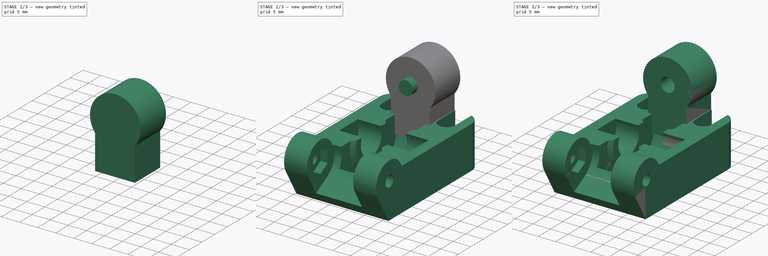
[diagram: build sequence overview — one tinted view per stage of 3, left to right]
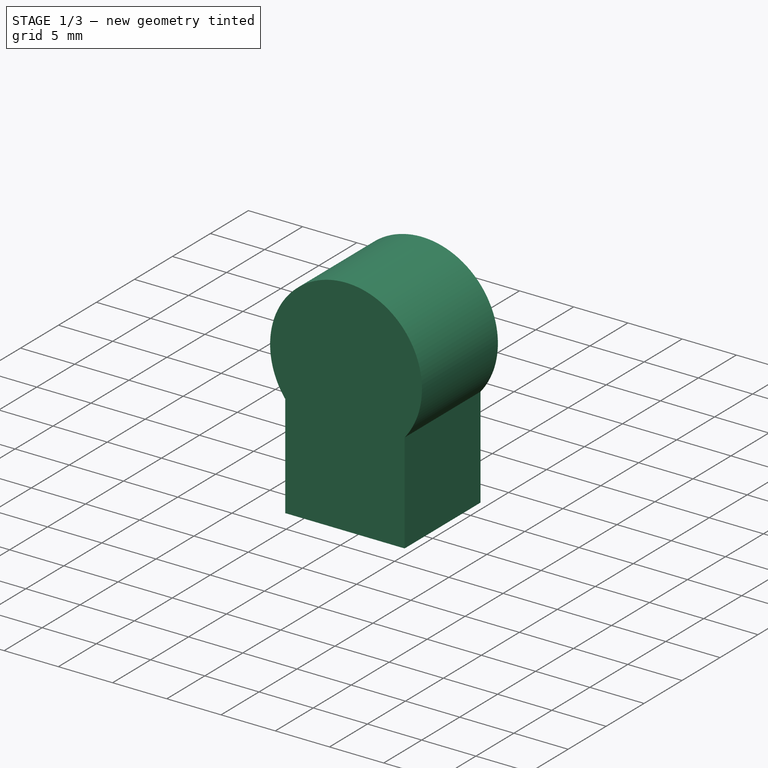
[diagram: stage 1 of 3 — iso view after this stage's code; geometry added in this stage tinted green]
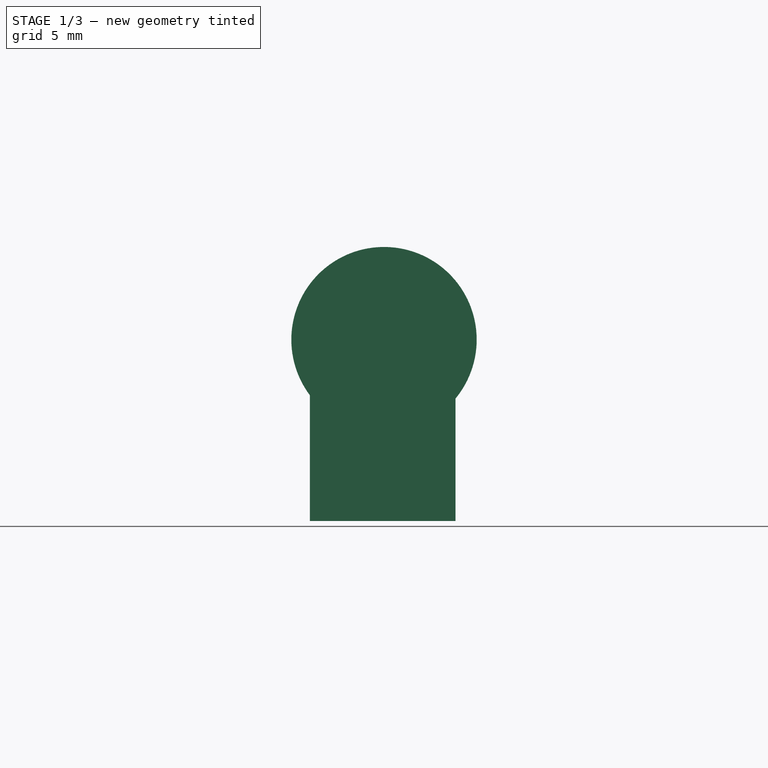
[diagram: stage 1 of 3 — front view after this stage's code; geometry added in this stage tinted green]
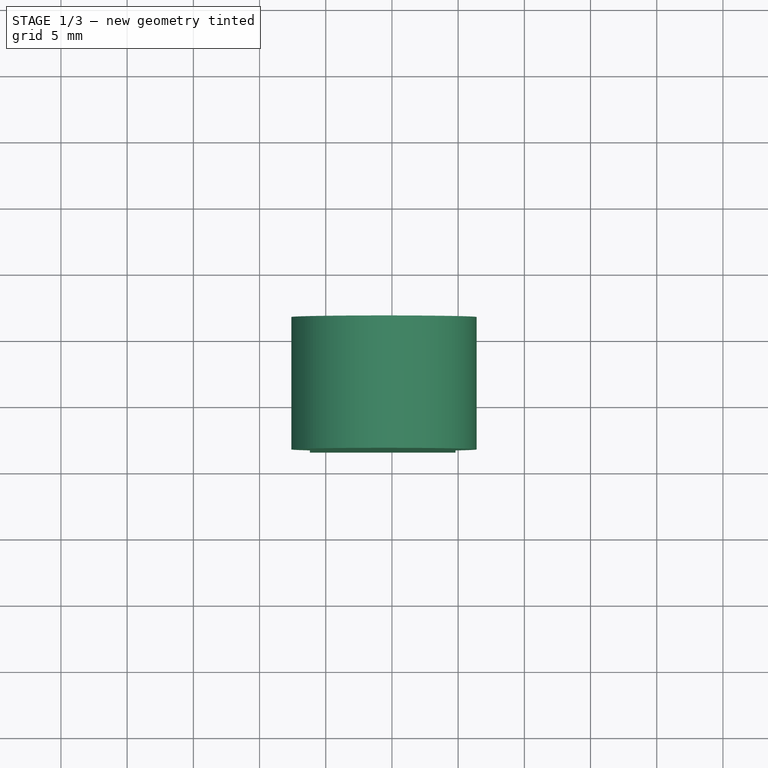
[diagram: stage 1 of 3 — top view after this stage's code; geometry added in this stage tinted green]
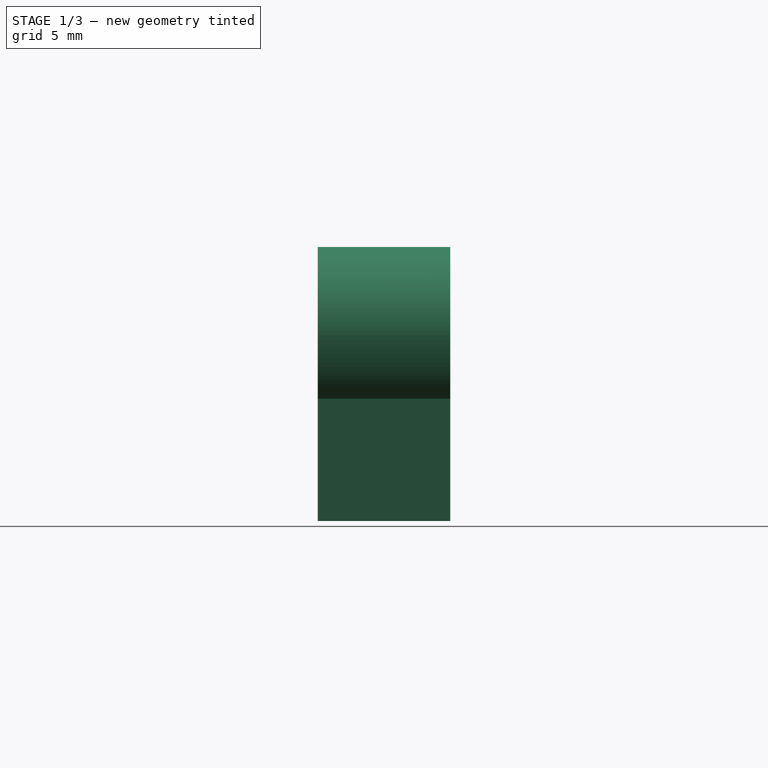
[diagram: stage 1 of 3 — right view after this stage's code; geometry added in this stage tinted green]
FCSTD DOCUMENT  (FreeCAD 0.14R3702 (Git))
Label: presilla-wades
License: CC-BY 3.0
LicenseURL: http://creativecommons.org/licenses/by/3.0/
objects: Part::Feature×3, Part::Cylinder×3, Part::Box×1, Part::MultiFuse×1, Part::Cut×1, Sketcher::SketchObject×1, PartDesign::Pocket×1
note: 12 computed .brp shape members not serialized (recipe doc carries the construction recipe); baked Part::Feature solids carry a one-line shape summary decoded from their .brp

FEATURE [Part::Feature] moe_E_idler001001  label="moe_E_idler002"
  Placement = pos=(-681.025,242.377,0) rot=(0,0,1;0rad)
  shape: bbox 26 x 42.45 x 23.8 mm, 2974 faces, 0 solids (baked)
FEATURE [Part::Cylinder] Cylinder  label="Cilindro"
  Angle = 360
  Height = 10
  Placement = pos=(-0.6,6.6,20.7) rot=(-1,0,0;1.5708rad)
  Radius = 7
FEATURE [Part::Feature] Solid
  shape: bbox 26 x 42.45 x 23.8 mm, 2974 faces (baked)
FEATURE [Part::Box] Box  label="Cubo"
  Height = 10
  Length = 11
  Placement = pos=(-6.2,6.6,7) rot=(0,0,1;0rad)
  Width = 10
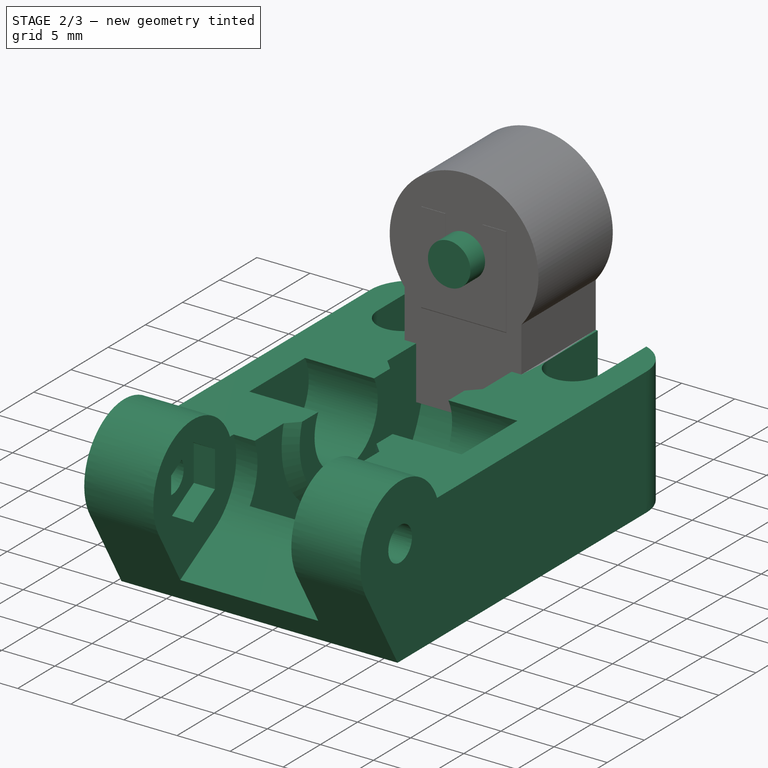
[diagram: stage 2 of 3 — iso view after this stage's code; geometry added in this stage tinted green]
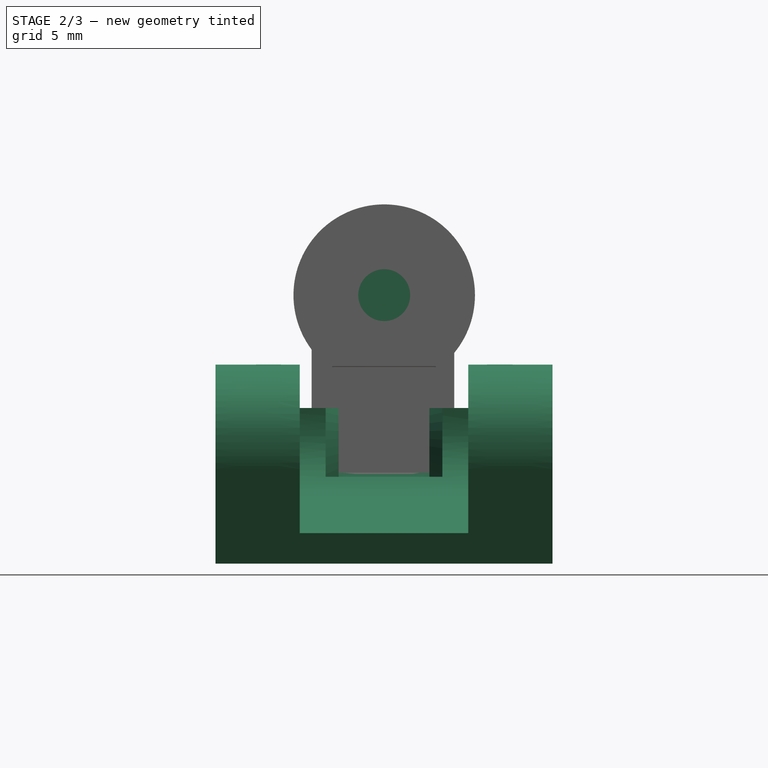
[diagram: stage 2 of 3 — front view after this stage's code; geometry added in this stage tinted green]
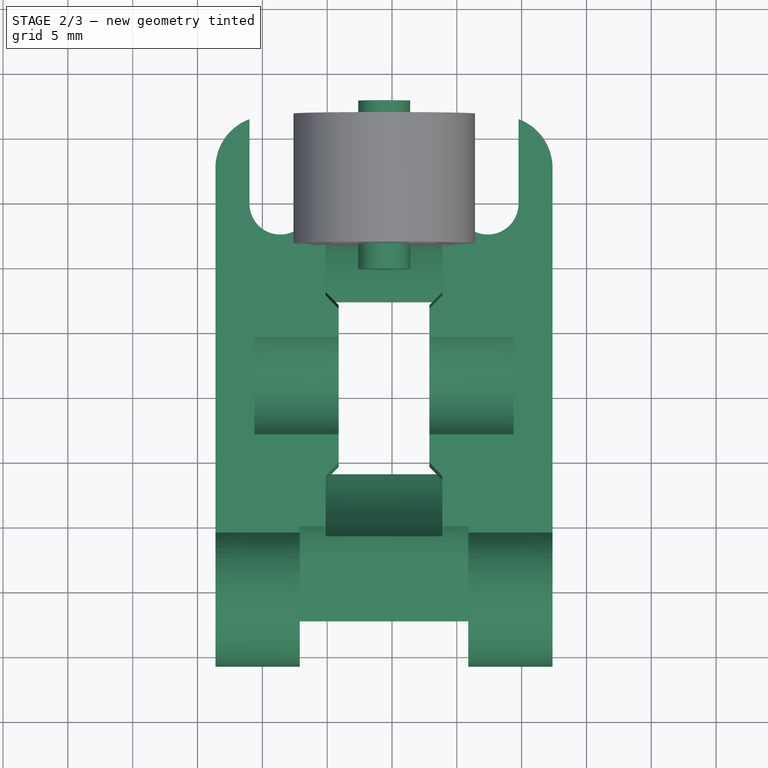
[diagram: stage 2 of 3 — top view after this stage's code; geometry added in this stage tinted green]
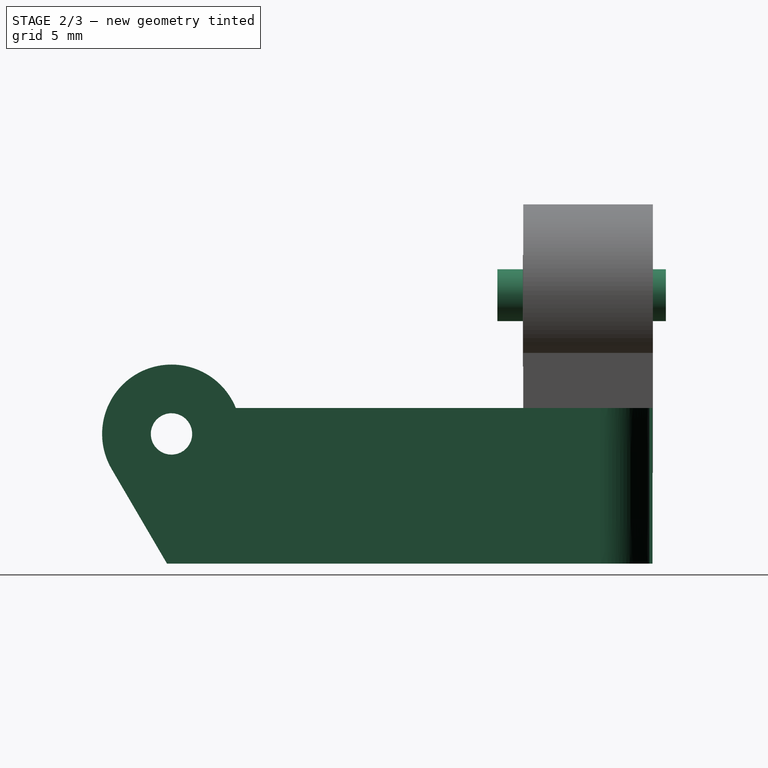
[diagram: stage 2 of 3 — right view after this stage's code; geometry added in this stage tinted green]
FEATURE [Part::Cylinder] Cylinder001
  Angle = 360
  Height = 10
  Radius = 2
FEATURE [Part::Cylinder] Cylinder002  label="Cilindro001"
  Angle = 360
  Height = 13
  Placement = pos=(-0.6,4.6,20.7) rot=(-1,0,0;1.5708rad)
  Radius = 2
FEATURE [Part::MultiFuse] Fusion
  Shapes = -> [Box,Cylinder,Solid]
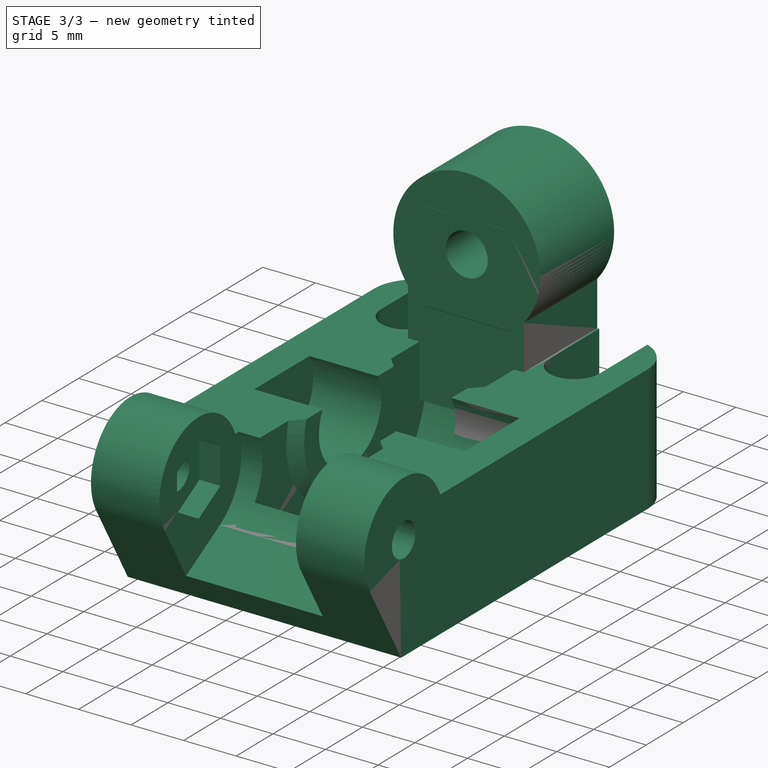
[diagram: stage 3 of 3 — iso view after this stage's code; geometry added in this stage tinted green]
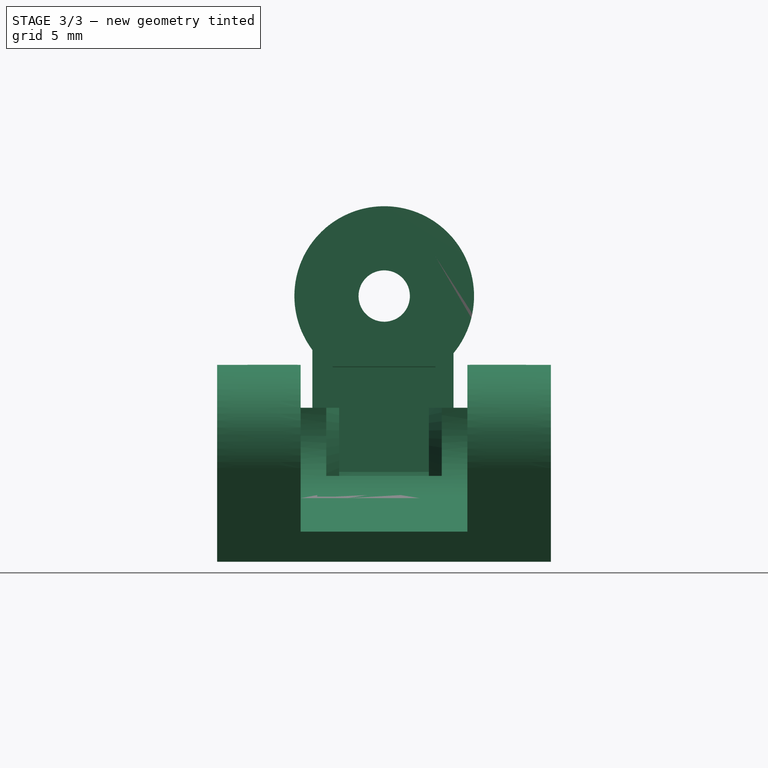
[diagram: stage 3 of 3 — front view after this stage's code; geometry added in this stage tinted green]
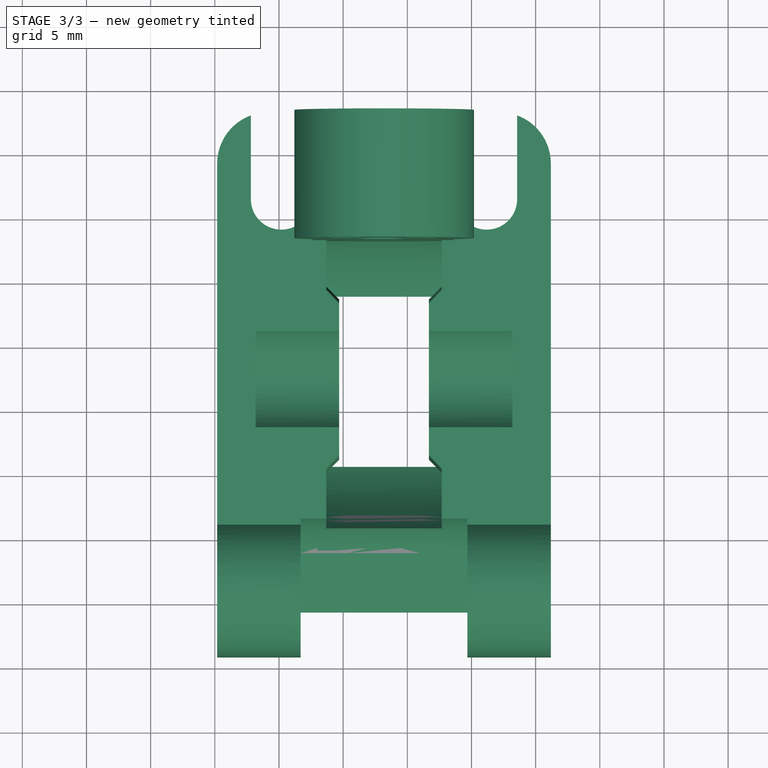
[diagram: stage 3 of 3 — top view after this stage's code; geometry added in this stage tinted green]
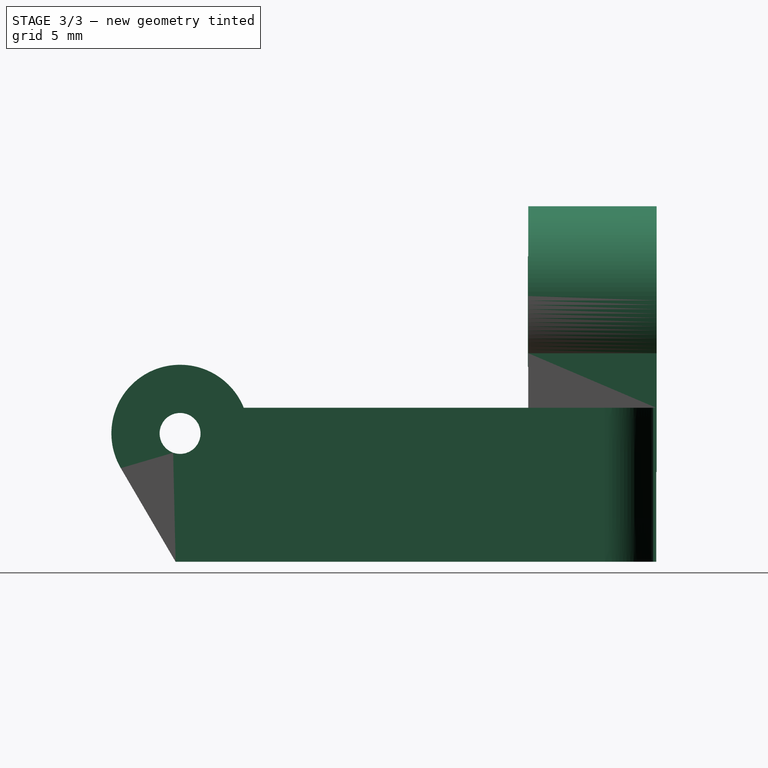
[diagram: stage 3 of 3 — right view after this stage's code; geometry added in this stage tinted green]
FEATURE [Part::Cut] Cut
  Base = -> Fusion
  Placement = pos=(-6.2,6.6,7) rot=(0,0,1;0rad)
  Tool = -> Cylinder002
FEATURE [Part::Feature] Cut001
  Placement = pos=(88,0,0) rot=(0,0,1;0rad)
  shape: bbox 26 x 42.48 x 27.71 mm, 2785 faces (baked)
FEATURE [Sketcher::SketchObject] Sketch
  ExternalGeometry = -> [Cut]
  Placement = pos=(-6.2,23.2,7) rot=(0,0.707107,0.707107;3.14159rad)
  Support = -> Cut [Face662]
  sketch-geometry (1):
    g0: Circle CenterX=0.6 CenterY=20.7 CenterZ=0 NormalX=0 NormalY=0 NormalZ=1 Radius=4.75
  constraints (2):
    c: Coincident(g0,g-3)
    c: Radius(g0) = 4.75
FEATURE [PartDesign::Pocket] Pocket
  Length = 4
  Placement = pos=(-6.2,6.6,7) rot=(0,0,1;0rad)
  Sketch = -> Sketch
  Type = 0
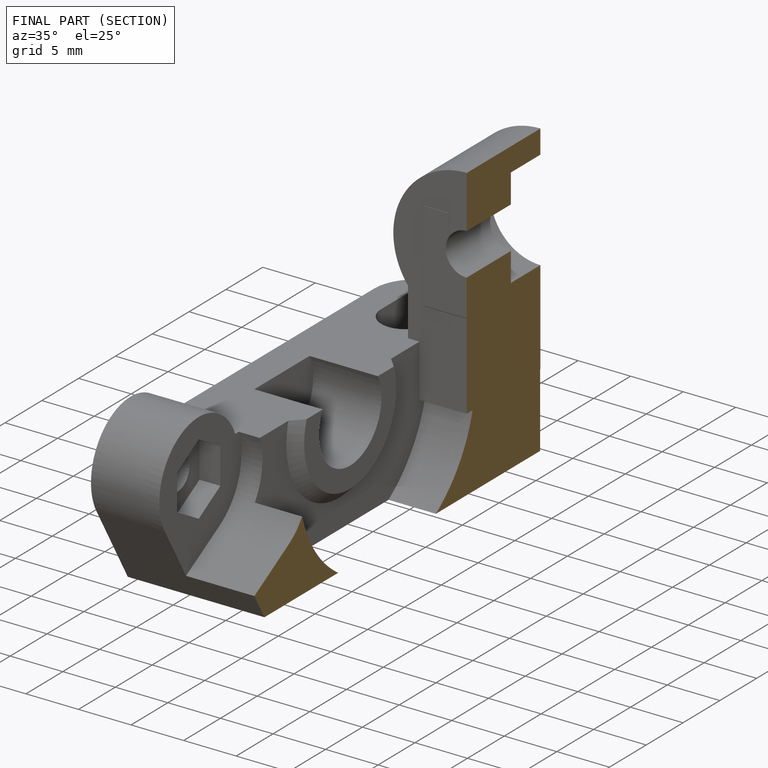
[diagram: finished part — half-section view (interior)]
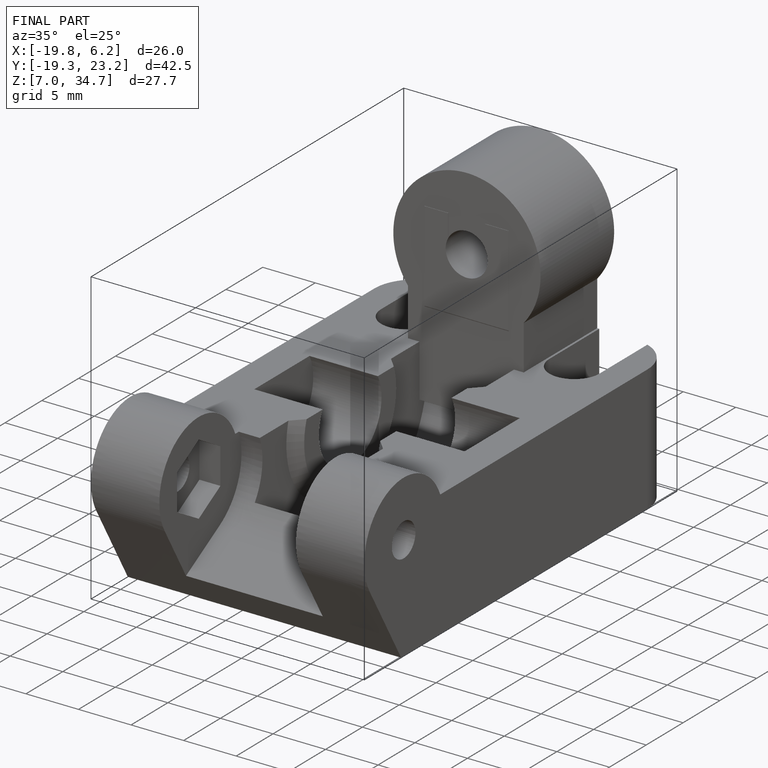
[diagram: finished part — iso view with bounding-box wireframe]
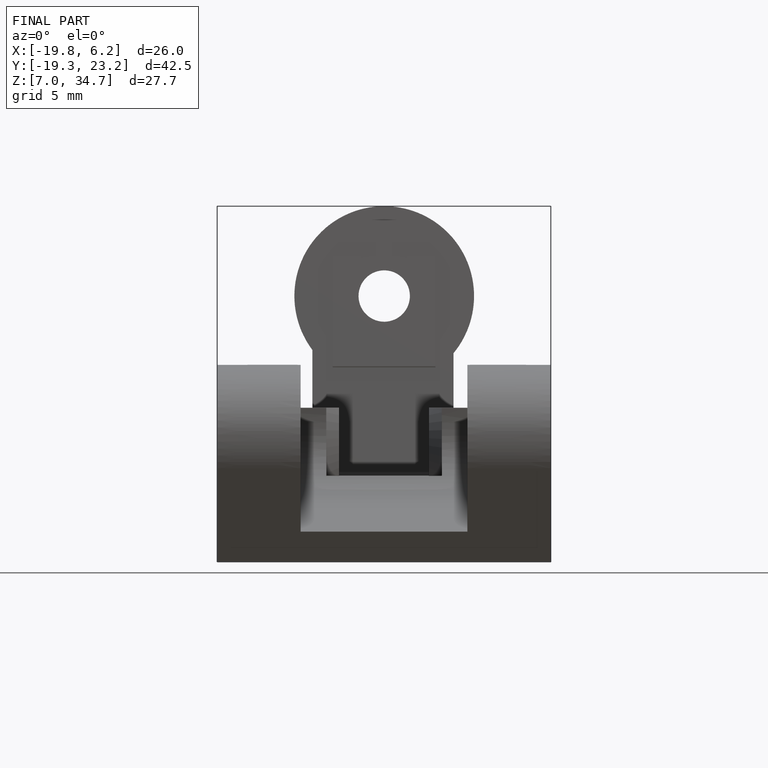
[diagram: finished part — front view with bounding-box wireframe]
